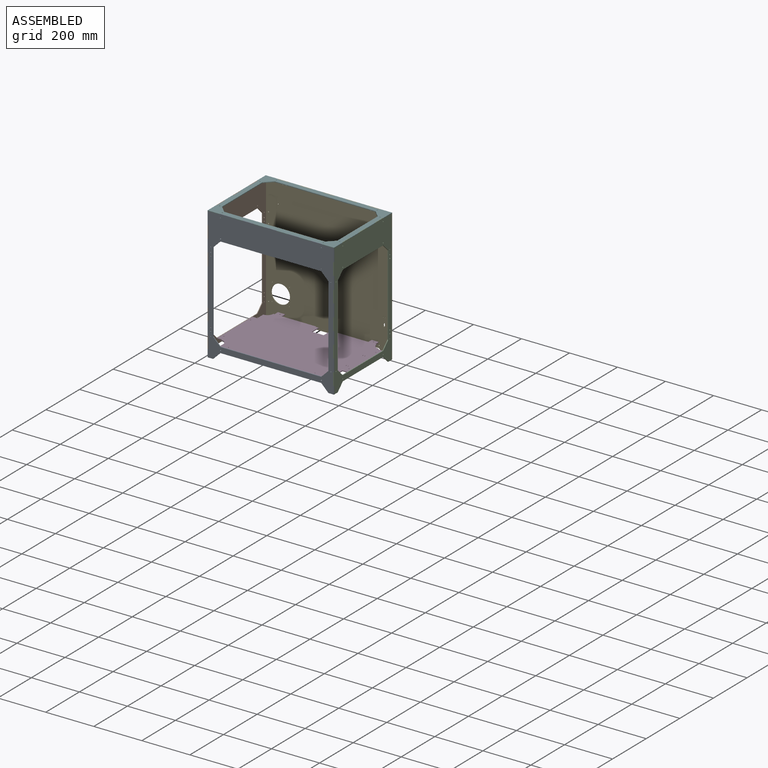
[diagram: assembled view]
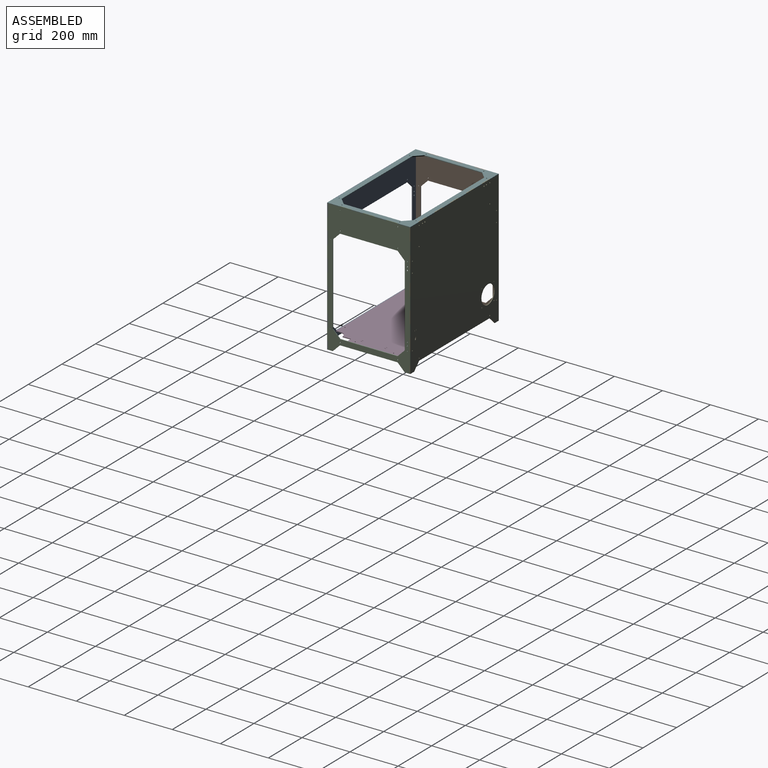
[diagram: assembled view, second angle]
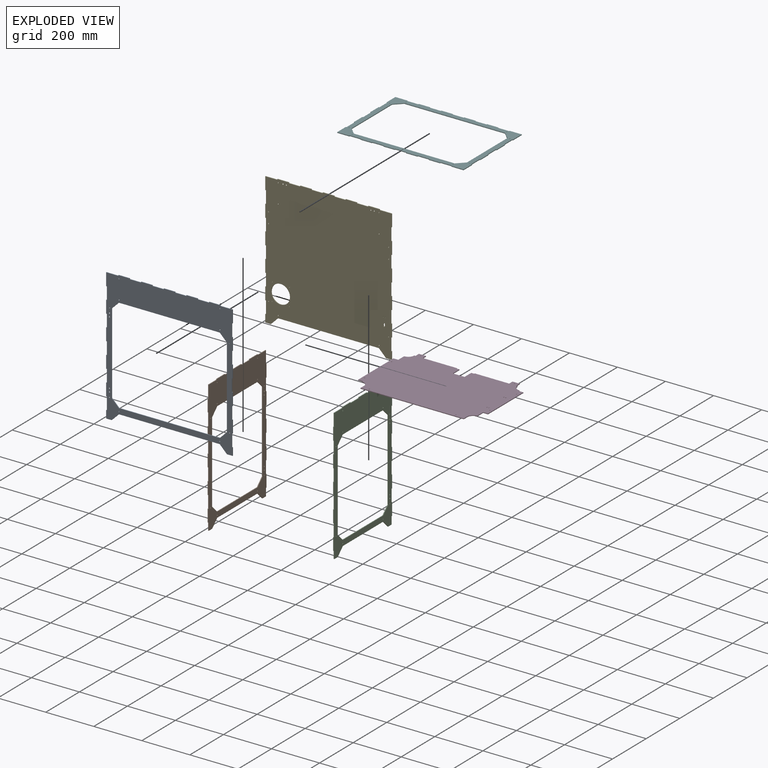
[diagram: exploded view]
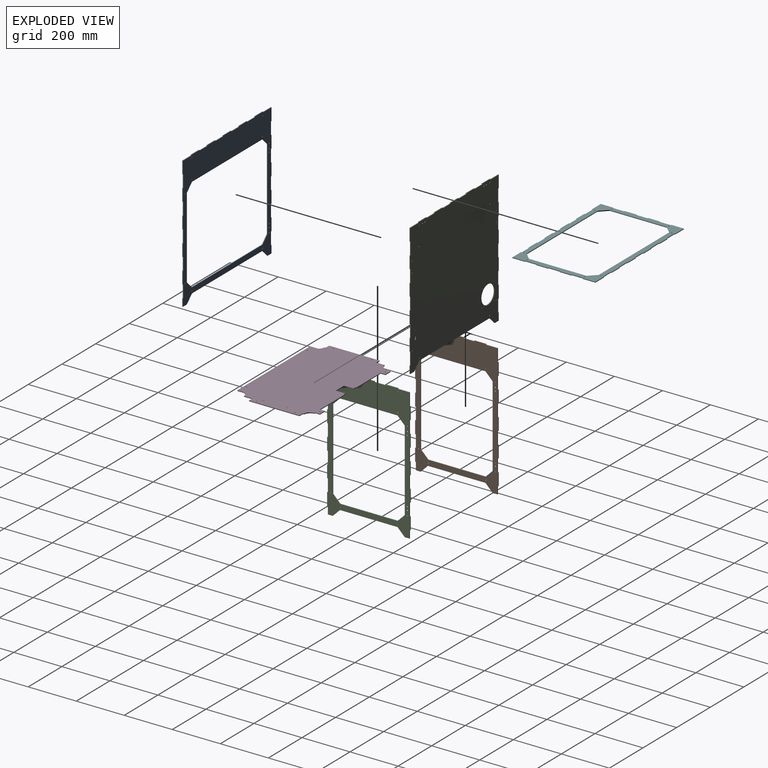
[diagram: exploded view, second angle]
ASSEMBLY  parts=6 mates=5
PART A: 92 faces, bbox 526x3x553 mm
  f0: plane 30x30mm, normal (-0.71,0,0.71), area 127.3mm2, adj f1,f89,f90,f91
  f1: plane 420x3mm, normal (0,0,1), area 1260mm2, adj f0,f2,f90,f91
  f2: plane 30x30mm, normal (0.71,0,0.71), area 127.3mm2, adj f1,f3,f90,f91
  f3: plane 337x3mm, normal (1,0,0), area 1011mm2, adj f2,f4,f90,f91
  f4: plane 30x30mm, normal (0.71,0,-0.71), area 127.3mm2, adj f3,f5,f90,f91
  f5: plane 420x3mm, normal (0,0,-1), area 1260mm2, adj f4,f6,f90,f91
  f6: plane 30x30mm, normal (-0.71,0,-0.71), area 127.3mm2, adj f5,f89,f90,f91
  f7: plane 50.27x3mm, normal (0,0,1), area 150.8mm2, adj f8,f74,f90,f91
  f8: plane 51.82x3mm, normal (-1,0,0), area 155.5mm2, adj f7,f9,f90,f91
  f9: plane 3x3mm, normal (0,0,-1), area 9mm2, adj f8,f10,f90,f91
  f10: plane 51.82x3mm, normal (-1,0,0), area 155.5mm2, adj f9,f11,f90,f91
  f11: plane 3x3mm, normal (0,0,1), area 9mm2, adj f10,f12,f90,f91
  f12: plane 51.82x3mm, normal (-1,0,0), area 155.5mm2, adj f11,f13,f90,f91
  f13: plane 3x3mm, normal (0,0,-1), area 9mm2, adj f12,f14,f90,f91
  f14: plane 51.82x3mm, normal (-1,0,0), area 155.5mm2, adj f13,f15,f90,f91
  f15: plane 3x3mm, normal (0,0,1), area 9mm2, adj f14,f16,f90,f91
  f16: plane 51.82x3mm, normal (-1,0,0), area 155.5mm2, adj f15,f17,f90,f91
  f17: plane 3x3mm, normal (0,0,-1), area 9mm2, adj f16,f18,f90,f91
  f18: plane 51.82x3mm, normal (-1,0,0), area 155.5mm2, adj f17,f19,f90,f91
  f19: plane 3x3mm, normal (0,0,1), area 9mm2, adj f18,f20,f90,f91
  f20: plane 51.82x3mm, normal (-1,0,0), area 155.5mm2, adj f19,f21,f90,f91
  f21: plane 3x3mm, normal (0,0,-1), area 9mm2, adj f20,f22,f90,f91
  f22: plane 51.82x3mm, normal (-1,0,0), area 155.5mm2, adj f21,f23,f90,f91
  f23: plane 3x3mm, normal (0,0,1), area 9mm2, adj f22,f24,f90,f91
  f24: plane 51.82x3mm, normal (-1,0,0), area 155.5mm2, adj f23,f25,f90,f91
  f25: plane 3x3mm, normal (0,0,-1), area 9mm2, adj f24,f26,f90,f91
  f26: plane 51.82x3mm, normal (-1,0,0), area 155.5mm2, adj f25,f27,f90,f91
  f27: plane 3x3mm, normal (0,0,1), area 9mm2, adj f26,f28,f90,f91
  f28: plane 31.82x3mm, normal (-1,0,0), area 95.5mm2, adj f27,f29,f90,f91
  f29: plane 23x3mm, normal (0,0,-1), area 69mm2, adj f28,f30,f90,f91
  f30: plane 30x30mm, normal (0.71,0,-0.71), area 127.3mm2, adj f29,f31,f90,f91
  f31: plane 420x3mm, normal (0,0,-1), area 1260mm2, adj f30,f32,f90,f91
  f32: plane 30x30mm, normal (-0.71,0,-0.71), area 127.3mm2, adj f31,f33,f90,f91
  f33: plane 23x3mm, normal (0,0,-1), area 69mm2, adj f32,f34,f90,f91
  f34: plane 31.82x3mm, normal (1,0,0), area 95.5mm2, adj f33,f35,f90,f91
  f35: plane 3x3mm, normal (0,0,1), area 9mm2, adj f34,f36,f90,f91
  f36: plane 51.82x3mm, normal (1,0,0), area 155.5mm2, adj f35,f37,f90,f91
  f37: plane 3x3mm, normal (0,0,-1), area 9mm2, adj f36,f38,f90,f91
  f38: plane 51.82x3mm, normal (1,0,0), area 155.5mm2, adj f37,f39,f90,f91
  f39: plane 3x3mm, normal (0,0,1), area 9mm2, adj f38,f40,f90,f91
  f40: plane 51.82x3mm, normal (1,0,0), area 155.5mm2, adj f39,f41,f90,f91
  f41: plane 3x3mm, normal (0,0,-1), area 9mm2, adj f40,f42,f90,f91
  f42: plane 51.82x3mm, normal (1,0,0), area 155.5mm2, adj f41,f43,f90,f91
  f43: plane 3x3mm, normal (0,0,1), area 9mm2, adj f42,f44,f90,f91
  f44: plane 51.82x3mm, normal (1,0,0), area 155.5mm2, adj f43,f45,f90,f91
  f45: plane 3x3mm, normal (0,0,-1), area 9mm2, adj f44,f46,f90,f91
  f46: plane 51.82x3mm, normal (1,0,0), area 155.5mm2, adj f45,f47,f90,f91
  f47: plane 3x3mm, normal (0,0,1), area 9mm2, adj f46,f48,f90,f91
  f48: plane 51.82x3mm, normal (1,0,0), area 155.5mm2, adj f47,f49,f90,f91
  f49: plane 3x3mm, normal (0,0,-1), area 9mm2, adj f48,f50,f90,f91
  f50: plane 51.82x3mm, normal (1,0,0), area 155.5mm2, adj f49,f51,f90,f91
  f51: plane 3x3mm, normal (0,0,1), area 9mm2, adj f50,f52,f90,f91
  f52: plane 51.82x3mm, normal (1,0,0), area 155.5mm2, adj f51,f53,f90,f91
  f53: plane 3x3mm, normal (0,0,-1), area 9mm2, adj f52,f54,f90,f91
  f54: plane 51.82x3mm, normal (1,0,0), area 155.5mm2, adj f53,f55,f90,f91
  f55: plane 50.27x3mm, normal (0,0,1), area 150.8mm2, adj f54,f56,f90,f91
  f56: plane 3x3mm, normal (1,0,0), area 9mm2, adj f55,f57,f90,f91
  f57: plane 47.27x3mm, normal (0,0,1), area 141.8mm2, adj f56,f58,f90,f91
  f58: plane 3x3mm, normal (-1,0,0), area 9mm2, adj f57,f59,f90,f91
  f59: plane 47.27x3mm, normal (0,0,1), area 141.8mm2, adj f58,f60,f90,f91
  f60: plane 3x3mm, normal (1,0,0), area 9mm2, adj f59,f61,f90,f91
  f61: plane 47.27x3mm, normal (0,0,1), area 141.8mm2, adj f60,f62,f90,f91
  f62: plane 3x3mm, normal (-1,0,0), area 9mm2, adj f61,f63,f90,f91
  f63: plane 47.27x3mm, normal (0,0,1), area 141.8mm2, adj f62,f64,f90,f91
  f64: plane 3x3mm, normal (1,0,0), area 9mm2, adj f63,f65,f90,f91
  f65: plane 47.27x3mm, normal (0,0,1), area 141.8mm2, adj f64,f66,f90,f91
  f66: plane 3x3mm, normal (-1,0,0), area 9mm2, adj f65,f67,f90,f91
  f67: plane 47.27x3mm, normal (0,0,1), area 141.8mm2, adj f66,f68,f90,f91
  f68: plane 3x3mm, normal (1,0,0), area 9mm2, adj f67,f69,f90,f91
  f69: plane 47.27x3mm, normal (0,0,1), area 141.8mm2, adj f68,f70,f90,f91
  f70: plane 3x3mm, normal (-1,0,0), area 9mm2, adj f69,f71,f90,f91
  f71: plane 47.27x3mm, normal (0,0,1), area 141.8mm2, adj f70,f72,f90,f91
  f72: plane 3x3mm, normal (1,0,0), area 9mm2, adj f71,f73,f90,f91
  f73: plane 47.27x3mm, normal (0,0,1), area 141.8mm2, adj f72,f74,f90,f91
  f74: plane 3x3mm, normal (-1,0,0), area 9mm2, adj f7,f73,f90,f91
  f75: cylinder r=2mm len=4mm, axis (0,1,0), area 37.7mm2, adj f90,f91
  f76: cylinder r=2mm len=4mm, axis (0,1,0), area 37.7mm2, adj f90,f91
  f77: cylinder r=2mm len=4mm, axis (0,1,0), area 37.7mm2, adj f90,f91
  f78: cylinder r=2mm len=4mm, axis (0,1,0), area 37.7mm2, adj f90,f91
  f79: cylinder r=2mm len=4mm, axis (0,1,0), area 37.7mm2, adj f90,f91
  f80: cylinder r=2mm len=4mm, axis (0,1,0), area 37.7mm2, adj f90,f91
  f81: cylinder r=2mm len=4mm, axis (0,1,0), area 37.7mm2, adj f90,f91
  f82: cylinder r=2mm len=4mm, axis (0,1,0), area 37.7mm2, adj f90,f91
  f83: cylinder r=2mm len=4mm, axis (0,1,0), area 37.7mm2, adj f90,f91
  f84: cylinder r=2mm len=4mm, axis (0,1,0), area 37.7mm2, adj f90,f91
  f85: cylinder r=2.5mm len=5mm, axis (0,1,0), area 47.1mm2, adj f90,f91
  f86: cylinder r=2.5mm len=5mm, axis (0,1,0), area 47.1mm2, adj f90,f91
  f87: cylinder r=2.5mm len=5mm, axis (0,1,0), area 47.1mm2, adj f90,f91
  f88: cylinder r=2.5mm len=5mm, axis (0,1,0), area 47.1mm2, adj f90,f91
  f89: plane 337x3mm, normal (-1,0,0), area 1011mm2, adj f0,f6,f90,f91
  f90: plane 553x526mm, normal (0,-1,0), area 85990.3mm2, adj f0,f1,f2,f3,f4,f5,f6,f7
  f91: plane 553x526mm, normal (0,1,0), area 85990.3mm2, adj f0,f1,f2,f3,f4,f5,f6,f7
PART B: 84 faces, bbox 3x346x553 mm
  f0: plane 48.57x3mm, normal (0,0,1), area 145.7mm2, adj f1,f81,f82,f83
  f1: plane 3x3mm, normal (0,1,0), area 9mm2, adj f0,f2,f82,f83
  f2: plane 48.57x3mm, normal (0,0,1), area 145.7mm2, adj f1,f3,f82,f83
  f3: plane 3x3mm, normal (0,-1,0), area 9mm2, adj f2,f4,f82,f83
  f4: plane 48.57x3mm, normal (0,0,1), area 145.7mm2, adj f3,f5,f82,f83
  f5: plane 3x3mm, normal (0,1,0), area 9mm2, adj f4,f6,f82,f83
  f6: plane 48.57x3mm, normal (0,0,1), area 145.7mm2, adj f5,f7,f82,f83
  f7: plane 3x3mm, normal (0,-1,0), area 9mm2, adj f6,f8,f82,f83
  f8: plane 48.57x3mm, normal (0,0,1), area 145.7mm2, adj f7,f9,f82,f83
  f9: plane 3x3mm, normal (0,1,0), area 9mm2, adj f8,f10,f82,f83
  f10: plane 48.57x3mm, normal (0,0,1), area 145.7mm2, adj f9,f11,f82,f83
  f11: plane 3x3mm, normal (0,-1,0), area 9mm2, adj f10,f12,f82,f83
  f12: plane 48.57x3mm, normal (0,0,1), area 145.7mm2, adj f11,f13,f82,f83
  f13: plane 51.82x3mm, normal (0,-1,0), area 155.5mm2, adj f12,f14,f82,f83
  f14: plane 3x3mm, normal (0,0,1), area 9mm2, adj f13,f15,f82,f83
  f15: plane 51.82x3mm, normal (0,-1,0), area 155.5mm2, adj f14,f16,f82,f83
  f16: plane 3x3mm, normal (0,0,-1), area 9mm2, adj f15,f17,f82,f83
  f17: plane 51.82x3mm, normal (0,-1,0), area 155.5mm2, adj f16,f18,f82,f83
  f18: plane 3x3mm, normal (0,0,1), area 9mm2, adj f17,f19,f82,f83
  f19: plane 51.82x3mm, normal (0,-1,0), area 155.5mm2, adj f18,f20,f82,f83
  f20: plane 3x3mm, normal (0,0,-1), area 9mm2, adj f19,f21,f82,f83
  f21: plane 51.82x3mm, normal (0,-1,0), area 155.5mm2, adj f20,f22,f82,f83
  f22: plane 3x3mm, normal (0,0,1), area 9mm2, adj f21,f23,f82,f83
  f23: plane 51.82x3mm, normal (0,-1,0), area 155.5mm2, adj f22,f24,f82,f83
  f24: plane 3x3mm, normal (0,0,-1), area 9mm2, adj f23,f25,f82,f83
  f25: plane 51.82x3mm, normal (0,-1,0), area 155.5mm2, adj f24,f26,f82,f83
  f26: plane 3x3mm, normal (0,0,1), area 9mm2, adj f25,f27,f82,f83
  f27: plane 51.82x3mm, normal (0,-1,0), area 155.5mm2, adj f26,f28,f82,f83
  f28: plane 3x3mm, normal (0,0,-1), area 9mm2, adj f27,f29,f82,f83
  f29: plane 51.82x3mm, normal (0,-1,0), area 155.5mm2, adj f28,f30,f82,f83
  f30: plane 3x3mm, normal (0,0,1), area 9mm2, adj f29,f31,f82,f83
  f31: plane 51.82x3mm, normal (0,-1,0), area 155.5mm2, adj f30,f32,f82,f83
  f32: plane 3x3mm, normal (0,0,-1), area 9mm2, adj f31,f33,f82,f83
  f33: plane 31.82x3mm, normal (0,-1,0), area 95.5mm2, adj f32,f34,f82,f83
  f34: plane 20x3mm, normal (0,0,-1), area 60mm2, adj f33,f35,f82,f83
  f35: plane 30x30mm, normal (0,0.71,-0.71), area 127.3mm2, adj f34,f36,f82,f83
  f36: plane 240x3mm, normal (0,0,-1), area 720mm2, adj f35,f37,f82,f83
  f37: plane 30x30mm, normal (0,-0.71,-0.71), area 127.3mm2, adj f36,f38,f82,f83
  f38: plane 20x3mm, normal (0,0,-1), area 60mm2, adj f37,f39,f82,f83
  f39: plane 31.82x3mm, normal (0,1,0), area 95.5mm2, adj f38,f40,f82,f83
  f40: plane 3x3mm, normal (0,0,-1), area 9mm2, adj f39,f41,f82,f83
  f41: plane 51.82x3mm, normal (0,1,0), area 155.5mm2, adj f40,f42,f82,f83
  f42: plane 3x3mm, normal (0,0,1), area 9mm2, adj f41,f43,f82,f83
  f43: plane 51.82x3mm, normal (0,1,0), area 155.5mm2, adj f42,f44,f82,f83
  f44: plane 3x3mm, normal (0,0,-1), area 9mm2, adj f43,f45,f82,f83
  f45: plane 51.82x3mm, normal (0,1,0), area 155.5mm2, adj f44,f46,f82,f83
  f46: plane 3x3mm, normal (0,0,1), area 9mm2, adj f45,f47,f82,f83
  f47: plane 51.82x3mm, normal (0,1,0), area 155.5mm2, adj f46,f48,f82,f83
  f48: plane 3x3mm, normal (0,0,-1), area 9mm2, adj f47,f49,f82,f83
  f49: plane 51.82x3mm, normal (0,1,0), area 155.5mm2, adj f48,f50,f82,f83
  f50: plane 3x3mm, normal (0,0,1), area 9mm2, adj f49,f51,f82,f83
  f51: plane 51.82x3mm, normal (0,1,0), area 155.5mm2, adj f50,f52,f82,f83
  f52: plane 3x3mm, normal (0,0,-1), area 9mm2, adj f51,f53,f82,f83
  f53: plane 51.82x3mm, normal (0,1,0), area 155.5mm2, adj f52,f54,f82,f83
  f54: plane 3x3mm, normal (0,0,1), area 9mm2, adj f53,f55,f82,f83
  f55: plane 51.82x3mm, normal (0,1,0), area 155.5mm2, adj f54,f56,f82,f83
  f56: plane 3x3mm, normal (0,0,-1), area 9mm2, adj f55,f57,f82,f83
  f57: plane 51.82x3mm, normal (0,1,0), area 155.5mm2, adj f56,f58,f82,f83
  f58: plane 3x3mm, normal (0,0,1), area 9mm2, adj f57,f81,f82,f83
  f59: plane 240x3mm, normal (0,0,1), area 720mm2, adj f60,f66,f82,f83
  f60: plane 30x30mm, normal (0,0.71,0.71), area 127.3mm2, adj f59,f61,f82,f83
  f61: plane 337x3mm, normal (0,1,0), area 1011mm2, adj f60,f62,f82,f83
  f62: plane 30x30mm, normal (0,0.71,-0.71), area 127.3mm2, adj f61,f63,f82,f83
  f63: plane 240x3mm, normal (0,0,-1), area 720mm2, adj f62,f64,f82,f83
  f64: plane 30x30mm, normal (0,-0.71,-0.71), area 127.3mm2, adj f63,f65,f82,f83
  f65: plane 337x3mm, normal (0,-1,0), area 1011mm2, adj f64,f66,f82,f83
  f66: plane 30x30mm, normal (0,-0.71,0.71), area 127.3mm2, adj f59,f65,f82,f83
  f67: cylinder r=2mm len=4mm, axis (-1,0,0), area 37.7mm2, adj f82,f83
  f68: cylinder r=2mm len=4mm, axis (-1,0,0), area 37.7mm2, adj f82,f83
  f69: cylinder r=2mm len=4mm, axis (-1,0,0), area 37.7mm2, adj f82,f83
  f70: cylinder r=2mm len=4mm, axis (-1,0,0), area 37.7mm2, adj f82,f83
  f71: cylinder r=2mm len=4mm, axis (-1,0,0), area 37.7mm2, adj f82,f83
  f72: cylinder r=2mm len=4mm, axis (-1,0,0), area 37.7mm2, adj f82,f83
  f73: cylinder r=2mm len=4mm, axis (-1,0,0), area 37.7mm2, adj f82,f83
  f74: cylinder r=2mm len=4mm, axis (-1,0,0), area 37.7mm2, adj f82,f83
  f75: cylinder r=2mm len=4mm, axis (-1,0,0), area 37.7mm2, adj f82,f83
  f76: cylinder r=2mm len=4mm, axis (-1,0,0), area 37.7mm2, adj f82,f83
  f77: cylinder r=2.5mm len=5mm, axis (-1,0,0), area 47.1mm2, adj f82,f83
  f78: cylinder r=2.5mm len=5mm, axis (-1,0,0), area 47.1mm2, adj f82,f83
  f79: cylinder r=2.5mm len=5mm, axis (-1,0,0), area 47.1mm2, adj f82,f83
  f80: cylinder r=2.5mm len=5mm, axis (-1,0,0), area 47.1mm2, adj f82,f83
  f81: plane 51.82x3mm, normal (0,1,0), area 155.5mm2, adj f0,f58,f82,f83
  f82: plane 553x346mm, normal (1,0,0), area 63387.5mm2, adj f0,f1,f2,f3,f4,f5,f6,f7
  f83: plane 553x346mm, normal (-1,0,0), area 63387.5mm2, adj f0,f1,f2,f3,f4,f5,f6,f7
PART C: same geometry as B
PART D: 60 faces, bbox 520x340x3 mm
  f0: cylinder r=25mm len=25mm, axis (0,0,-1), area 117.8mm2, adj f1,f57,f58,f59
  f1: plane 5x3mm, normal (0,1,0), area 15mm2, adj f0,f2,f58,f59
  f2: plane 20x3mm, normal (1,0,0), area 60mm2, adj f1,f3,f58,f59
  f3: plane 30x3mm, normal (0,1,0), area 90mm2, adj f2,f4,f58,f59
  f4: plane 20x3mm, normal (-1,0,0), area 60mm2, adj f3,f5,f58,f59
  f5: plane 142.5x3mm, normal (0,1,0), area 427.5mm2, adj f4,f6,f58,f59
  f6: plane 3.2x3mm, normal (-1,0,0), area 9.6mm2, adj f5,f7,f58,f59
  f7: plane 13x3mm, normal (0,1,0), area 39mm2, adj f6,f8,f58,f59
  f8: plane 39.8x3mm, normal (-1,0,0), area 119.4mm2, adj f7,f9,f58,f59
  f9: plane 49x3mm, normal (0,1,0), area 147mm2, adj f8,f10,f58,f59
  f10: plane 39.8x3mm, normal (1,0,0), area 119.4mm2, adj f9,f11,f58,f59
  f11: plane 13x3mm, normal (0,1,0), area 39mm2, adj f10,f12,f58,f59
  f12: plane 3.2x3mm, normal (1,0,0), area 9.6mm2, adj f11,f13,f58,f59
  f13: plane 142.5x3mm, normal (0,1,0), area 427.5mm2, adj f12,f14,f58,f59
  f14: plane 20x3mm, normal (1,0,0), area 60mm2, adj f13,f15,f58,f59
  f15: plane 30x3mm, normal (0,1,0), area 90mm2, adj f14,f16,f58,f59
  f16: plane 20x3mm, normal (-1,0,0), area 60mm2, adj f15,f17,f58,f59
  f17: plane 5x3mm, normal (0,1,0), area 15mm2, adj f16,f18,f58,f59
  f18: cylinder r=25mm len=25mm, axis (0,0,-1), area 117.8mm2, adj f17,f19,f58,f59
  f19: plane 35x3mm, normal (-1,0,0), area 105mm2, adj f18,f20,f58,f59
  f20: plane 20x3mm, normal (0,1,0), area 60mm2, adj f19,f21,f58,f59
  f21: plane 210x3mm, normal (-1,0,0), area 630mm2, adj f20,f22,f58,f59
  f22: plane 20x3mm, normal (0,-1,0), area 60mm2, adj f21,f23,f58,f59
  f23: plane 5x3mm, normal (-1,0,0), area 15mm2, adj f22,f24,f58,f59
  f24: cylinder r=25mm len=25mm, axis (0,0,-1), area 117.8mm2, adj f23,f25,f58,f59
  f25: plane 20x3mm, normal (-1,0,0), area 60mm2, adj f24,f26,f58,f59
  f26: plane 430x3mm, normal (0,-1,0), area 1290mm2, adj f25,f27,f58,f59
  f27: plane 20x3mm, normal (1,0,0), area 60mm2, adj f26,f28,f58,f59
  f28: cylinder r=25mm len=25mm, axis (0,0,-1), area 117.8mm2, adj f27,f29,f58,f59
  f29: plane 35x3mm, normal (1,0,0), area 105mm2, adj f28,f30,f58,f59
  f30: plane 20x3mm, normal (0,-1,0), area 60mm2, adj f29,f31,f58,f59
  f31: plane 210x3mm, normal (1,0,0), area 630mm2, adj f30,f32,f58,f59
  f32: plane 20x3mm, normal (0,1,0), area 60mm2, adj f31,f57,f58,f59
  f33: plane 3x2mm, normal (0,-1,0), area 6mm2, adj f34,f45,f58,f59
  f34: plane 5x3mm, normal (-1,0,0), area 15mm2, adj f33,f35,f58,f59
  f35: plane 3x2mm, normal (0,1,0), area 6mm2, adj f34,f45,f58,f59
  f36: plane 3x2mm, normal (0,1,0), area 6mm2, adj f37,f46,f58,f59
  f37: plane 5x3mm, normal (1,0,0), area 15mm2, adj f36,f38,f58,f59
  f38: plane 3x2mm, normal (0,-1,0), area 6mm2, adj f37,f46,f58,f59
  f39: plane 3x2mm, normal (0,1,0), area 6mm2, adj f40,f47,f58,f59
  f40: plane 5x3mm, normal (1,0,0), area 15mm2, adj f39,f41,f58,f59
  f41: plane 3x2mm, normal (0,-1,0), area 6mm2, adj f40,f47,f58,f59
  f42: plane 3x2mm, normal (0,1,0), area 6mm2, adj f43,f48,f58,f59
  f43: plane 5x3mm, normal (1,0,0), area 15mm2, adj f42,f44,f58,f59
  f44: plane 3x2mm, normal (0,-1,0), area 6mm2, adj f43,f48,f58,f59
  f45: plane 5x3mm, normal (1,0,0), area 15mm2, adj f33,f35,f58,f59
  f46: plane 5x3mm, normal (-1,0,0), area 15mm2, adj f36,f38,f58,f59
  f47: plane 5x3mm, normal (-1,0,0), area 15mm2, adj f39,f41,f58,f59
  f48: plane 5x3mm, normal (-1,0,0), area 15mm2, adj f42,f44,f58,f59
  f49: cylinder r=2mm len=4mm, axis (0,0,-1), area 37.7mm2, adj f58,f59
  f50: cylinder r=2mm len=4mm, axis (0,0,-1), area 37.7mm2, adj f58,f59
  f51: cylinder r=2mm len=4mm, axis (0,0,-1), area 37.7mm2, adj f58,f59
  f52: cylinder r=2mm len=4mm, axis (0,0,-1), area 37.7mm2, adj f58,f59
  f53: cylinder r=2mm len=4mm, axis (0,0,-1), area 37.7mm2, adj f58,f59
  f54: cylinder r=2mm len=4mm, axis (0,0,-1), area 37.7mm2, adj f58,f59
  f55: cylinder r=2mm len=4mm, axis (0,0,-1), area 37.7mm2, adj f58,f59
  f56: cylinder r=2mm len=4mm, axis (0,0,-1), area 37.7mm2, adj f58,f59
  f57: plane 5x3mm, normal (1,0,0), area 15mm2, adj f0,f32,f58,f59
  f58: plane 520x340mm, normal (0,0,1), area 157905.8mm2, adj f0,f1,f2,f3,f4,f5,f6,f7
  f59: plane 520x340mm, normal (0,0,-1), area 157905.8mm2, adj f0,f1,f2,f3,f4,f5,f6,f7
PART E: 100 faces, bbox 526x3x553 mm
  f0: plane 3x2mm, normal (0,0,1), area 6mm2, adj f1,f97,f98,f99
  f1: plane 4x3mm, normal (1,0,0), area 12mm2, adj f0,f2,f98,f99
  f2: plane 3x2mm, normal (0,0,-1), area 6mm2, adj f1,f97,f98,f99
  f3: plane 3x2mm, normal (0,0,1), area 6mm2, adj f4,f73,f98,f99
  f4: plane 4x3mm, normal (1,0,0), area 12mm2, adj f3,f5,f98,f99
  f5: plane 3x2mm, normal (0,0,-1), area 6mm2, adj f4,f73,f98,f99
  f6: plane 50.27x3mm, normal (0,0,1), area 150.8mm2, adj f7,f80,f98,f99
  f7: plane 51.82x3mm, normal (-1,0,0), area 155.5mm2, adj f6,f8,f98,f99
  f8: plane 3x3mm, normal (0,0,-1), area 9mm2, adj f7,f9,f98,f99
  f9: plane 51.82x3mm, normal (-1,0,0), area 155.5mm2, adj f8,f10,f98,f99
  f10: plane 3x3mm, normal (0,0,1), area 9mm2, adj f9,f11,f98,f99
  f11: plane 51.82x3mm, normal (-1,0,0), area 155.5mm2, adj f10,f12,f98,f99
  f12: plane 3x3mm, normal (0,0,-1), area 9mm2, adj f11,f13,f98,f99
  f13: plane 51.82x3mm, normal (-1,0,0), area 155.5mm2, adj f12,f14,f98,f99
  f14: plane 3x3mm, normal (0,0,1), area 9mm2, adj f13,f15,f98,f99
  f15: plane 51.82x3mm, normal (-1,0,0), area 155.5mm2, adj f14,f16,f98,f99
  f16: plane 3x3mm, normal (0,0,-1), area 9mm2, adj f15,f17,f98,f99
  f17: plane 51.82x3mm, normal (-1,0,0), area 155.5mm2, adj f16,f18,f98,f99
  f18: plane 3x3mm, normal (0,0,1), area 9mm2, adj f17,f19,f98,f99
  f19: plane 51.82x3mm, normal (-1,0,0), area 155.5mm2, adj f18,f20,f98,f99
  f20: plane 3x3mm, normal (0,0,-1), area 9mm2, adj f19,f21,f98,f99
  f21: plane 51.82x3mm, normal (-1,0,0), area 155.5mm2, adj f20,f22,f98,f99
  f22: plane 3x3mm, normal (0,0,1), area 9mm2, adj f21,f23,f98,f99
  f23: plane 51.82x3mm, normal (-1,0,0), area 155.5mm2, adj f22,f24,f98,f99
  f24: plane 3x3mm, normal (0,0,-1), area 9mm2, adj f23,f25,f98,f99
  f25: plane 51.82x3mm, normal (-1,0,0), area 155.5mm2, adj f24,f26,f98,f99
  f26: plane 3x3mm, normal (0,0,1), area 9mm2, adj f25,f27,f98,f99
  f27: plane 31.82x3mm, normal (-1,0,0), area 95.5mm2, adj f26,f28,f98,f99
  f28: plane 23x3mm, normal (0,0,-1), area 69mm2, adj f27,f29,f98,f99
  f29: plane 30x30mm, normal (0.71,0,-0.71), area 127.3mm2, adj f28,f30,f98,f99
  f30: plane 420x3mm, normal (0,0,-1), area 1260mm2, adj f29,f31,f98,f99
  f31: plane 30x30mm, normal (-0.71,0,-0.71), area 127.3mm2, adj f30,f32,f98,f99
  f32: plane 23x3mm, normal (0,0,-1), area 69mm2, adj f31,f33,f98,f99
  f33: plane 31.82x3mm, normal (1,0,0), area 95.5mm2, adj f32,f34,f98,f99
  f34: plane 3x3mm, normal (0,0,1), area 9mm2, adj f33,f35,f98,f99
  f35: plane 51.82x3mm, normal (1,0,0), area 155.5mm2, adj f34,f36,f98,f99
  f36: plane 3x3mm, normal (0,0,-1), area 9mm2, adj f35,f37,f98,f99
  f37: plane 51.82x3mm, normal (1,0,0), area 155.5mm2, adj f36,f38,f98,f99
  f38: plane 3x3mm, normal (0,0,1), area 9mm2, adj f37,f39,f98,f99
  f39: plane 51.82x3mm, normal (1,0,0), area 155.5mm2, adj f38,f40,f98,f99
  f40: plane 3x3mm, normal (0,0,-1), area 9mm2, adj f39,f41,f98,f99
  f41: plane 51.82x3mm, normal (1,0,0), area 155.5mm2, adj f40,f42,f98,f99
  f42: plane 3x3mm, normal (0,0,1), area 9mm2, adj f41,f43,f98,f99
  f43: plane 51.82x3mm, normal (1,0,0), area 155.5mm2, adj f42,f44,f98,f99
  f44: plane 3x3mm, normal (0,0,-1), area 9mm2, adj f43,f45,f98,f99
  f45: plane 51.82x3mm, normal (1,0,0), area 155.5mm2, adj f44,f46,f98,f99
  f46: plane 3x3mm, normal (0,0,1), area 9mm2, adj f45,f47,f98,f99
  f47: plane 51.82x3mm, normal (1,0,0), area 155.5mm2, adj f46,f48,f98,f99
  f48: plane 3x3mm, normal (0,0,-1), area 9mm2, adj f47,f49,f98,f99
  f49: plane 51.82x3mm, normal (1,0,0), area 155.5mm2, adj f48,f50,f98,f99
  f50: plane 3x3mm, normal (0,0,1), area 9mm2, adj f49,f51,f98,f99
  f51: plane 51.82x3mm, normal (1,0,0), area 155.5mm2, adj f50,f52,f98,f99
  f52: plane 3x3mm, normal (0,0,-1), area 9mm2, adj f51,f53,f98,f99
  f53: plane 51.82x3mm, normal (1,0,0), area 155.5mm2, adj f52,f54,f98,f99
  f54: plane 50.27x3mm, normal (0,0,1), area 150.8mm2, adj f53,f55,f98,f99
  f55: plane 3x3mm, normal (1,0,0), area 9mm2, adj f54,f56,f98,f99
  f56: plane 47.27x3mm, normal (0,0,1), area 141.8mm2, adj f55,f57,f98,f99
  f57: plane 3x3mm, normal (-1,0,0), area 9mm2, adj f56,f58,f98,f99
  f58: plane 47.27x3mm, normal (0,0,1), area 141.8mm2, adj f57,f59,f98,f99
  f59: plane 3x3mm, normal (1,0,0), area 9mm2, adj f58,f60,f98,f99
  f60: plane 47.27x3mm, normal (0,0,1), area 141.8mm2, adj f59,f61,f98,f99
  f61: plane 3x3mm, normal (-1,0,0), area 9mm2, adj f60,f62,f98,f99
  f62: plane 47.27x3mm, normal (0,0,1), area 141.8mm2, adj f61,f63,f98,f99
  f63: plane 3x3mm, normal (1,0,0), area 9mm2, adj f62,f64,f98,f99
  f64: plane 47.27x3mm, normal (0,0,1), area 141.8mm2, adj f63,f65,f98,f99
  f65: plane 3x3mm, normal (-1,0,0), area 9mm2, adj f64,f66,f98,f99
  f66: plane 47.27x3mm, normal (0,0,1), area 141.8mm2, adj f65,f67,f98,f99
  f67: plane 3x3mm, normal (1,0,0), area 9mm2, adj f66,f68,f98,f99
  f68: plane 47.27x3mm, normal (0,0,1), area 141.8mm2, adj f67,f69,f98,f99
  f69: plane 3x3mm, normal (-1,0,0), area 9mm2, adj f68,f70,f98,f99
  f70: plane 47.27x3mm, normal (0,0,1), area 141.8mm2, adj f69,f71,f98,f99
  f71: plane 3x3mm, normal (1,0,0), area 9mm2, adj f70,f72,f98,f99
  f72: plane 47.27x3mm, normal (0,0,1), area 141.8mm2, adj f71,f80,f98,f99
  f73: plane 4x3mm, normal (-1,0,0), area 12mm2, adj f3,f5,f98,f99
  f74: cylinder r=39mm len=78mm, axis (0,-1,0), area 735.1mm2, adj f98,f99
  f75: cylinder r=1.5mm len=3mm, axis (0,-1,0), area 28.3mm2, adj f98,f99
  f76: cylinder r=1.5mm len=3mm, axis (0,-1,0), area 28.3mm2, adj f98,f99
  f77: cylinder r=1.5mm len=3mm, axis (0,-1,0), area 28.3mm2, adj f98,f99
  f78: cylinder r=1.5mm len=3mm, axis (0,-1,0), area 28.3mm2, adj f98,f99
  f79: extruded ~15x6mm, area 103.6mm2, adj f98,f99
  f80: plane 3x3mm, normal (-1,0,0), area 9mm2, adj f6,f72,f98,f99
  f81: cylinder r=2mm len=4mm, axis (0,-1,0), area 37.7mm2, adj f98,f99
  f82: cylinder r=2mm len=4mm, axis (0,-1,0), area 37.7mm2, adj f98,f99
  f83: cylinder r=2mm len=4mm, axis (0,-1,0), area 37.7mm2, adj f98,f99
  f84: cylinder r=2mm len=4mm, axis (0,-1,0), area 37.7mm2, adj f98,f99
  f85: cylinder r=2mm len=4mm, axis (0,-1,0), area 37.7mm2, adj f98,f99
  f86: cylinder r=2mm len=4mm, axis (0,-1,0), area 37.7mm2, adj f98,f99
  f87: cylinder r=2mm len=4mm, axis (0,-1,0), area 37.7mm2, adj f98,f99
  f88: cylinder r=2mm len=4mm, axis (0,-1,0), area 37.7mm2, adj f98,f99
  f89: cylinder r=2mm len=4mm, axis (0,-1,0), area 37.7mm2, adj f98,f99
  f90: cylinder r=2mm len=4mm, axis (0,-1,0), area 37.7mm2, adj f98,f99
  f91: cylinder r=2.5mm len=5mm, axis (0,-1,0), area 47.1mm2, adj f98,f99
  f92: cylinder r=2.5mm len=5mm, axis (0,-1,0), area 47.1mm2, adj f98,f99
  f93: cylinder r=2.5mm len=5mm, axis (0,-1,0), area 47.1mm2, adj f98,f99
  f94: cylinder r=2.5mm len=5mm, axis (0,-1,0), area 47.1mm2, adj f98,f99
  f95: cylinder r=2mm len=4mm, axis (0,-1,0), area 37.7mm2, adj f98,f99
  f96: cylinder r=2mm len=4mm, axis (0,-1,0), area 37.7mm2, adj f98,f99
  f97: plane 4x3mm, normal (-1,0,0), area 12mm2, adj f0,f2,f98,f99
  f98: plane 553x526mm, normal (0,1,0), area 269831.9mm2, adj f0,f1,f2,f3,f4,f5,f6,f7
  f99: plane 553x526mm, normal (0,-1,0), area 269831.9mm2, adj f0,f1,f2,f3,f4,f5,f6,f7
PART F: 86 faces, bbox 526x346x3 mm
  f0: plane 47.27x3mm, normal (0,-1,0), area 141.8mm2, adj f1,f83,f84,f85
  f1: plane 3x3mm, normal (-1,0,0), area 9mm2, adj f0,f2,f84,f85
  f2: plane 50.27x3mm, normal (0,-1,0), area 150.8mm2, adj f1,f3,f84,f85
  f3: plane 51.57x3mm, normal (1,0,0), area 154.7mm2, adj f2,f4,f84,f85
  f4: plane 3x3mm, normal (0,1,0), area 9mm2, adj f3,f5,f84,f85
  f5: plane 48.57x3mm, normal (1,0,0), area 145.7mm2, adj f4,f6,f84,f85
  f6: plane 3x3mm, normal (0,-1,0), area 9mm2, adj f5,f7,f84,f85
  f7: plane 48.57x3mm, normal (1,0,0), area 145.7mm2, adj f6,f8,f84,f85
  f8: plane 3x3mm, normal (0,1,0), area 9mm2, adj f7,f9,f84,f85
  f9: plane 48.57x3mm, normal (1,0,0), area 145.7mm2, adj f8,f10,f84,f85
  f10: plane 3x3mm, normal (0,-1,0), area 9mm2, adj f9,f11,f84,f85
  f11: plane 48.57x3mm, normal (1,0,0), area 145.7mm2, adj f10,f12,f84,f85
  f12: plane 3x3mm, normal (0,1,0), area 9mm2, adj f11,f13,f84,f85
  f13: plane 48.57x3mm, normal (1,0,0), area 145.7mm2, adj f12,f14,f84,f85
  f14: plane 3x3mm, normal (0,-1,0), area 9mm2, adj f13,f15,f84,f85
  f15: plane 51.57x3mm, normal (1,0,0), area 154.7mm2, adj f14,f16,f84,f85
  f16: plane 50.27x3mm, normal (0,1,0), area 150.8mm2, adj f15,f17,f84,f85
  f17: plane 3x3mm, normal (-1,0,0), area 9mm2, adj f16,f18,f84,f85
  f18: plane 47.27x3mm, normal (0,1,0), area 141.8mm2, adj f17,f19,f84,f85
  f19: plane 3x3mm, normal (1,0,0), area 9mm2, adj f18,f20,f84,f85
  f20: plane 47.27x3mm, normal (0,1,0), area 141.8mm2, adj f19,f21,f84,f85
  f21: plane 3x3mm, normal (-1,0,0), area 9mm2, adj f20,f22,f84,f85
  f22: plane 47.27x3mm, normal (0,1,0), area 141.8mm2, adj f21,f23,f84,f85
  f23: plane 3x3mm, normal (1,0,0), area 9mm2, adj f22,f24,f84,f85
  f24: plane 47.27x3mm, normal (0,1,0), area 141.8mm2, adj f23,f25,f84,f85
  f25: plane 3x3mm, normal (-1,0,0), area 9mm2, adj f24,f26,f84,f85
  f26: plane 47.27x3mm, normal (0,1,0), area 141.8mm2, adj f25,f27,f84,f85
  f27: plane 3x3mm, normal (1,0,0), area 9mm2, adj f26,f28,f84,f85
  f28: plane 47.27x3mm, normal (0,1,0), area 141.8mm2, adj f27,f29,f84,f85
  f29: plane 3x3mm, normal (-1,0,0), area 9mm2, adj f28,f30,f84,f85
  f30: plane 47.27x3mm, normal (0,1,0), area 141.8mm2, adj f29,f31,f84,f85
  f31: plane 3x3mm, normal (1,0,0), area 9mm2, adj f30,f32,f84,f85
  f32: plane 47.27x3mm, normal (0,1,0), area 141.8mm2, adj f31,f33,f84,f85
  f33: plane 3x3mm, normal (-1,0,0), area 9mm2, adj f32,f34,f84,f85
  f34: plane 47.27x3mm, normal (0,1,0), area 141.8mm2, adj f33,f35,f84,f85
  f35: plane 3x3mm, normal (1,0,0), area 9mm2, adj f34,f36,f84,f85
  f36: plane 50.27x3mm, normal (0,1,0), area 150.8mm2, adj f35,f37,f84,f85
  f37: plane 51.57x3mm, normal (-1,0,0), area 154.7mm2, adj f36,f38,f84,f85
  f38: plane 3x3mm, normal (0,-1,0), area 9mm2, adj f37,f39,f84,f85
  f39: plane 48.57x3mm, normal (-1,0,0), area 145.7mm2, adj f38,f40,f84,f85
  f40: plane 3x3mm, normal (0,1,0), area 9mm2, adj f39,f41,f84,f85
  f41: plane 48.57x3mm, normal (-1,0,0), area 145.7mm2, adj f40,f42,f84,f85
  f42: plane 3x3mm, normal (0,-1,0), area 9mm2, adj f41,f43,f84,f85
  f43: plane 48.57x3mm, normal (-1,0,0), area 145.7mm2, adj f42,f44,f84,f85
  f44: plane 3x3mm, normal (0,1,0), area 9mm2, adj f43,f45,f84,f85
  f45: plane 48.57x3mm, normal (-1,0,0), area 145.7mm2, adj f44,f46,f84,f85
  f46: plane 3x3mm, normal (0,-1,0), area 9mm2, adj f45,f47,f84,f85
  f47: plane 48.57x3mm, normal (-1,0,0), area 145.7mm2, adj f46,f48,f84,f85
  f48: plane 3x3mm, normal (0,1,0), area 9mm2, adj f47,f49,f84,f85
  f49: plane 51.57x3mm, normal (-1,0,0), area 154.7mm2, adj f48,f50,f84,f85
  f50: plane 50.27x3mm, normal (0,-1,0), area 150.8mm2, adj f49,f51,f84,f85
  f51: plane 3x3mm, normal (1,0,0), area 9mm2, adj f50,f52,f84,f85
  f52: plane 47.27x3mm, normal (0,-1,0), area 141.8mm2, adj f51,f53,f84,f85
  f53: plane 3x3mm, normal (-1,0,0), area 9mm2, adj f52,f54,f84,f85
  f54: plane 47.27x3mm, normal (0,-1,0), area 141.8mm2, adj f53,f55,f84,f85
  f55: plane 3x3mm, normal (1,0,0), area 9mm2, adj f54,f56,f84,f85
  f56: plane 47.27x3mm, normal (0,-1,0), area 141.8mm2, adj f55,f57,f84,f85
  f57: plane 3x3mm, normal (-1,0,0), area 9mm2, adj f56,f58,f84,f85
  f58: plane 47.27x3mm, normal (0,-1,0), area 141.8mm2, adj f57,f59,f84,f85
  f59: plane 3x3mm, normal (1,0,0), area 9mm2, adj f58,f60,f84,f85
  f60: plane 47.27x3mm, normal (0,-1,0), area 141.8mm2, adj f59,f61,f84,f85
  f61: plane 3x3mm, normal (-1,0,0), area 9mm2, adj f60,f62,f84,f85
  f62: plane 47.27x3mm, normal (0,-1,0), area 141.8mm2, adj f61,f63,f84,f85
  f63: plane 3x3mm, normal (1,0,0), area 9mm2, adj f62,f64,f84,f85
  f64: plane 47.27x3mm, normal (0,-1,0), area 141.8mm2, adj f63,f65,f84,f85
  f65: plane 3x3mm, normal (-1,0,0), area 9mm2, adj f64,f66,f84,f85
  f66: plane 47.27x3mm, normal (0,-1,0), area 141.8mm2, adj f65,f83,f84,f85
  f67: plane 420x3mm, normal (0,-1,0), area 1260mm2, adj f68,f74,f84,f85
  f68: plane 30x30mm, normal (-0.71,-0.71,0), area 127.3mm2, adj f67,f69,f84,f85
  f69: plane 240x3mm, normal (-1,0,0), area 720mm2, adj f68,f70,f84,f85
  f70: plane 30x30mm, normal (-0.71,0.71,0), area 127.3mm2, adj f69,f71,f84,f85
  f71: plane 420x3mm, normal (0,1,0), area 1260mm2, adj f70,f72,f84,f85
  f72: plane 30x30mm, normal (0.71,0.71,0), area 127.3mm2, adj f71,f73,f84,f85
  f73: plane 240x3mm, normal (1,0,0), area 720mm2, adj f72,f74,f84,f85
  f74: plane 30x30mm, normal (0.71,-0.71,0), area 127.3mm2, adj f67,f73,f84,f85
  f75: cylinder r=2mm len=4mm, axis (0,0,-1), area 37.7mm2, adj f84,f85
  f76: cylinder r=2mm len=4mm, axis (0,0,-1), area 37.7mm2, adj f84,f85
  f77: cylinder r=2mm len=4mm, axis (0,0,-1), area 37.7mm2, adj f84,f85
  f78: cylinder r=2mm len=4mm, axis (0,0,-1), area 37.7mm2, adj f84,f85
  f79: cylinder r=2mm len=4mm, axis (0,0,-1), area 37.7mm2, adj f84,f85
  f80: cylinder r=2mm len=4mm, axis (0,0,-1), area 37.7mm2, adj f84,f85
  f81: cylinder r=2mm len=4mm, axis (0,0,-1), area 37.7mm2, adj f84,f85
  f82: cylinder r=2mm len=4mm, axis (0,0,-1), area 37.7mm2, adj f84,f85
  f83: plane 3x3mm, normal (1,0,0), area 9mm2, adj f0,f66,f84,f85
  f84: plane 526x346mm, normal (0,0,1), area 37403mm2, adj f0,f1,f2,f3,f4,f5,f6,f7
  f85: plane 526x346mm, normal (0,0,-1), area 37403mm2, adj f0,f1,f2,f3,f4,f5,f6,f7
PLACE A t=(91.58,-104.03,-261.65)mm
PLACE B t=(-171.42,65.97,-261.65)mm
PLACE C t=(351.58,65.97,-261.65)mm
PLACE D t=(91.58,65.97,-488.15)mm
PLACE E t=(91.58,235.97,-261.65)mm
PLACE F t=(91.58,65.97,11.85)mm
MATE fastened F.f84 <-> B.f10  axis (0,0,1) through (-168.42,-55.46,14.85)mm
MATE fastened D.f21 <-> B.f82  axis (-1,0,0) through (-168.42,-54.03,-485.15)mm
MATE fastened A.f90 <-> F.f50  axis (0,-1,0) through (-171.42,-107.03,11.85)mm
MATE fastened F.f84 <-> C.f10  axis (0,0,1) through (351.58,-55.46,14.85)mm
MATE fastened E.f98 <-> F.f36  axis (0,1,0) through (-171.42,238.97,11.85)mm
